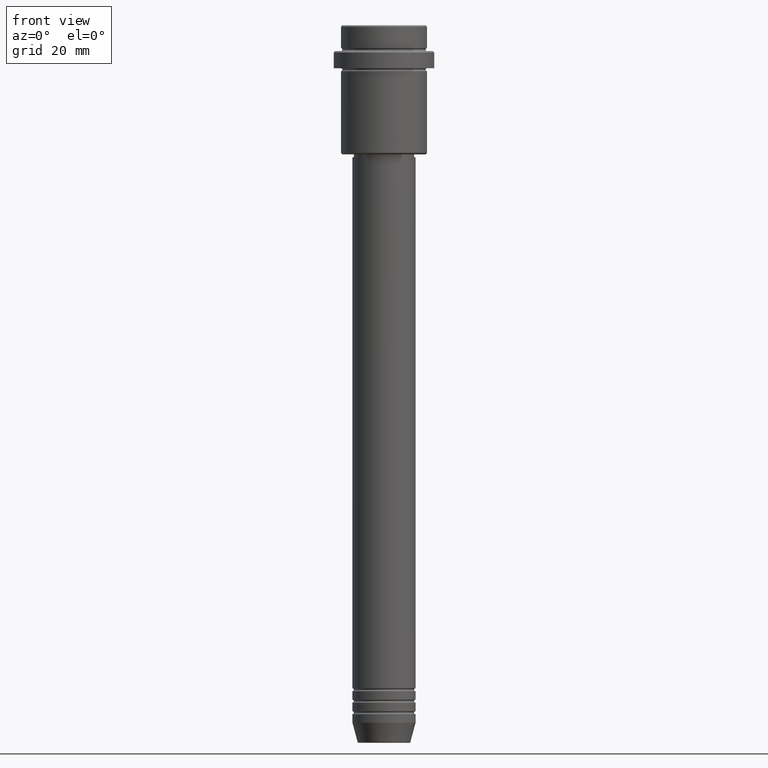
[diagram: clean part render]
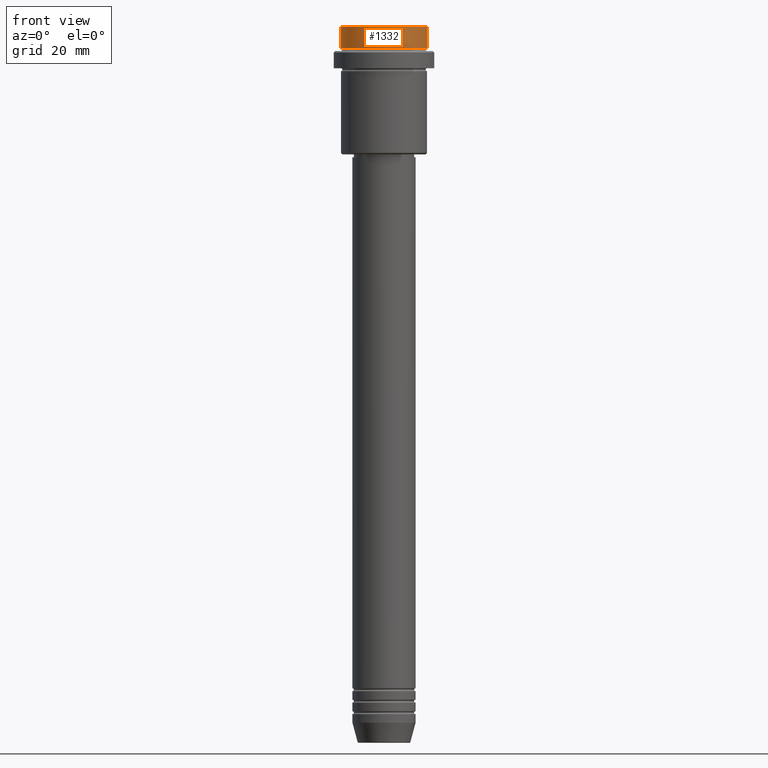
[diagram: same view with one face highlighted and labeled with its STEP entity id]
A machine part, front view. The second image highlights one B-rep face of the part: STEP entity #1332.
In plain terms, the highlighted cylindrical surface (partial cylindrical patch) has radius 15 mm, axis along (-0, -0, 1).
Its self-contained STEP definition (entity closure, byte-faithful):
#71 = AXIS2_PLACEMENT_3D ( 'NONE', #967, #168, #1057 ) ;
#74 = DIRECTION ( 'NONE',  ( 0.000000000000000000, 0.000000000000000000, -1.000000000000000000 ) ) ;
#84 = DIRECTION ( 'NONE',  ( -0.000000000000000000, -0.000000000000000000, 1.000000000000000000 ) ) ;
#98 = CARTESIAN_POINT ( 'NONE',  ( 15.00000000000000000, 0.000000000000000000, -7.999999999999998224 ) ) ;
#122 = CARTESIAN_POINT ( 'NONE',  ( 15.00000000000000000, 0.000000000000000000, -0.5000000000000108802 ) ) ;
#168 = DIRECTION ( 'NONE',  ( -0.000000000000000000, -0.000000000000000000, 1.000000000000000000 ) ) ;
#186 = LINE ( 'NONE', #296, #1289 ) ;
#248 = VECTOR ( 'NONE', #1373, 1000.000000000000000 ) ;
#273 = FACE_OUTER_BOUND ( 'NONE', #342, .T. ) ;
#296 = CARTESIAN_POINT ( 'NONE',  ( 15.00000000000000000, 0.000000000000000000, 0.000000000000000000 ) ) ;
#305 = VERTEX_POINT ( 'NONE', #694 ) ;
#342 = EDGE_LOOP ( 'NONE', ( #691, #637, #844, #722 ) ) ;
#367 = VERTEX_POINT ( 'NONE', #122 ) ;
#396 = DIRECTION ( 'NONE',  ( 1.000000000000000000, 0.000000000000000000, 0.000000000000000000 ) ) ;
#484 = DIRECTION ( 'NONE',  ( -0.000000000000000000, -0.000000000000000000, 1.000000000000000000 ) ) ;
#514 = DIRECTION ( 'NONE',  ( 1.000000000000000000, 0.000000000000000000, 0.000000000000000000 ) ) ;
#563 = VERTEX_POINT ( 'NONE', #98 ) ;
#637 = ORIENTED_EDGE ( 'NONE', *, *, #1416, .T. ) ;
#691 = ORIENTED_EDGE ( 'NONE', *, *, #1302, .F. ) ;
#694 = CARTESIAN_POINT ( 'NONE',  ( -15.00000000000000000, 1.836970198721029589E-15, -7.999999999999998224 ) ) ;
#714 = CIRCLE ( 'NONE', #1009, 15.00000000000000000 ) ;
#722 = ORIENTED_EDGE ( 'NONE', *, *, #1318, .T. ) ;
#727 = CARTESIAN_POINT ( 'NONE',  ( 0.000000000000000000, 0.000000000000000000, -7.999999999999998224 ) ) ;
#750 = VERTEX_POINT ( 'NONE', #913 ) ;
#844 = ORIENTED_EDGE ( 'NONE', *, *, #1390, .T. ) ;
#913 = CARTESIAN_POINT ( 'NONE',  ( -15.00000000000000000, 1.836970198721029589E-15, -0.5000000000000108802 ) ) ;
#953 = LINE ( 'NONE', #959, #248 ) ;
#959 = CARTESIAN_POINT ( 'NONE',  ( -15.00000000000000000, 1.836970198721029589E-15, 0.000000000000000000 ) ) ;
#967 = CARTESIAN_POINT ( 'NONE',  ( 0.000000000000000000, 0.000000000000000000, 0.000000000000000000 ) ) ;
#970 = CIRCLE ( 'NONE', #1362, 15.00000000000000000 ) ;
#1009 = AXIS2_PLACEMENT_3D ( 'NONE', #1043, #74, #396 ) ;
#1043 = CARTESIAN_POINT ( 'NONE',  ( 0.000000000000000000, 0.000000000000000000, -0.5000000000000108802 ) ) ;
#1057 = DIRECTION ( 'NONE',  ( 1.000000000000000000, 0.000000000000000000, 0.000000000000000000 ) ) ;
#1159 = CYLINDRICAL_SURFACE ( 'NONE', #71, 15.00000000000000000 ) ;
#1289 = VECTOR ( 'NONE', #484, 1000.000000000000000 ) ;
#1302 = EDGE_CURVE ( 'NONE', #305, #750, #953, .T. ) ;
#1318 = EDGE_CURVE ( 'NONE', #367, #750, #714, .T. ) ;
#1332 = ADVANCED_FACE ( 'NONE', ( #273 ), #1159, .T. ) ;
#1362 = AXIS2_PLACEMENT_3D ( 'NONE', #727, #84, #514 ) ;
#1373 = DIRECTION ( 'NONE',  ( -0.000000000000000000, -0.000000000000000000, 1.000000000000000000 ) ) ;
#1390 = EDGE_CURVE ( 'NONE', #563, #367, #186, .T. ) ;
#1416 = EDGE_CURVE ( 'NONE', #305, #563, #970, .T. ) ;